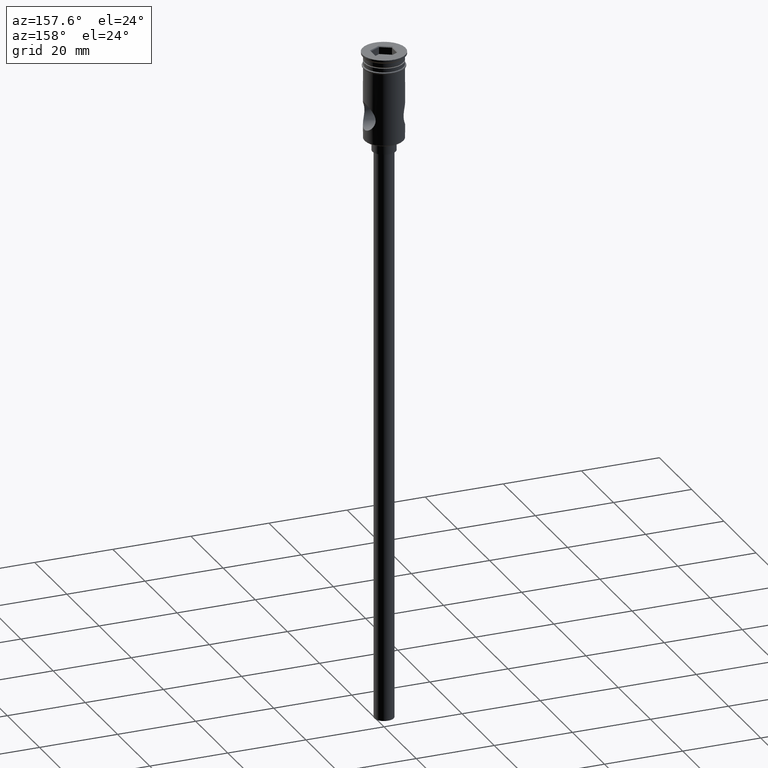
[diagram: clean part render]
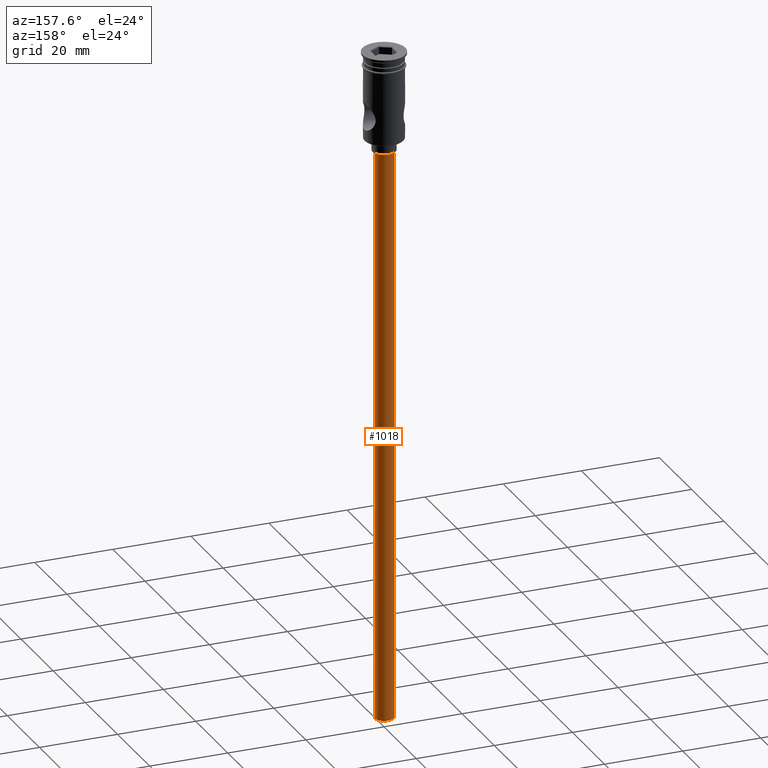
[diagram: same view with one face highlighted and labeled with its STEP entity id]
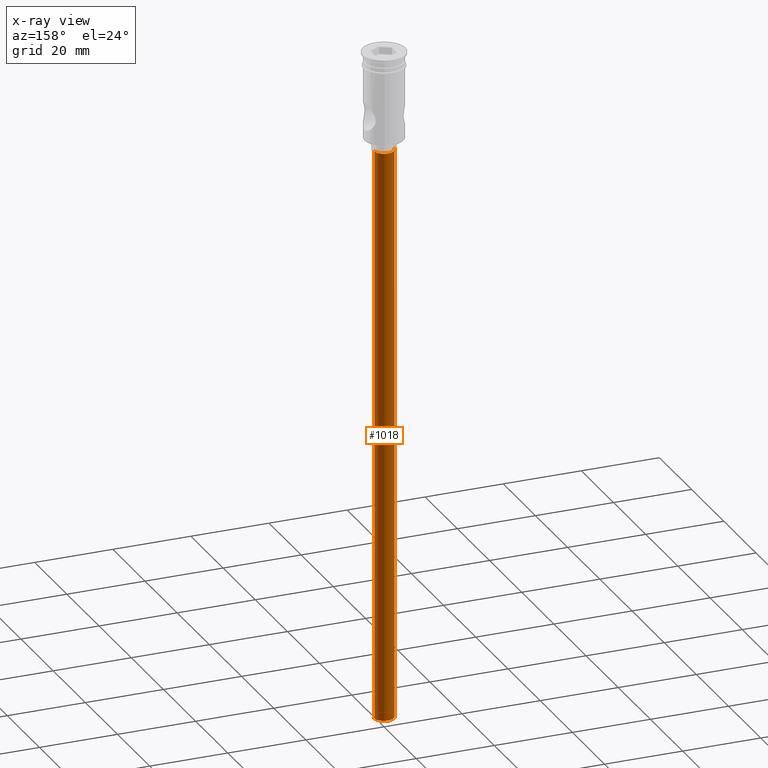
[diagram: x-ray of the same camera — body ghosted, the highlighted face saturated]
A machine part, auxiliary view. The second image highlights one B-rep face of the part: STEP entity #1018.
The next image is the same camera in x-ray: the body ghosted, the highlighted face saturated — about 0% of this face is hidden behind the body in this view.
In plain terms, the highlighted cylindrical surface (edge-blend (fillet) strip) has radius 2.5 mm, axis along (-0, -0, 1).
Its self-contained STEP definition (entity closure, byte-faithful):
#5 = ORIENTED_EDGE ( 'NONE', *, *, #1066, .T. ) ;
#10 = CARTESIAN_POINT ( 'NONE',  ( 0.000000000000000000, 0.000000000000000000, -25.50000000000000000 ) ) ;
#43 = DIRECTION ( 'NONE',  ( -0.000000000000000000, -0.000000000000000000, 1.000000000000000000 ) ) ;
#66 = CYLINDRICAL_SURFACE ( 'NONE', #178, 2.500000000000000000 ) ;
#115 = VECTOR ( 'NONE', #43, 1000.000000000000000 ) ;
#125 = EDGE_CURVE ( 'NONE', #1451, #959, #760, .T. ) ;
#147 = VERTEX_POINT ( 'NONE', #581 ) ;
#155 = CARTESIAN_POINT ( 'NONE',  ( -2.500000000000000000, 3.061616997868383141E-16, -25.50000000000000000 ) ) ;
#178 = AXIS2_PLACEMENT_3D ( 'NONE', #532, #297, #742 ) ;
#203 = LINE ( 'NONE', #648, #1180 ) ;
#225 = DIRECTION ( 'NONE',  ( -0.000000000000000000, -0.000000000000000000, 1.000000000000000000 ) ) ;
#297 = DIRECTION ( 'NONE',  ( -0.000000000000000000, -0.000000000000000000, 1.000000000000000000 ) ) ;
#349 = DIRECTION ( 'NONE',  ( -1.000000000000000000, 0.000000000000000000, 0.000000000000000000 ) ) ;
#387 = CIRCLE ( 'NONE', #957, 2.500000000000000000 ) ;
#532 = CARTESIAN_POINT ( 'NONE',  ( 0.000000000000000000, 0.000000000000000000, -172.5000000000000000 ) ) ;
#567 = ORIENTED_EDGE ( 'NONE', *, *, #907, .T. ) ;
#581 = CARTESIAN_POINT ( 'NONE',  ( 2.500000000000000000, 0.000000000000000000, -25.50000000000000000 ) ) ;
#648 = CARTESIAN_POINT ( 'NONE',  ( 2.500000000000000000, 0.000000000000000000, -172.5000000000000000 ) ) ;
#700 = EDGE_LOOP ( 'NONE', ( #949, #567, #5, #1457 ) ) ;
#712 = AXIS2_PLACEMENT_3D ( 'NONE', #1030, #1388, #349 ) ;
#742 = DIRECTION ( 'NONE',  ( 1.000000000000000000, 0.000000000000000000, 0.000000000000000000 ) ) ;
#760 = CIRCLE ( 'NONE', #712, 2.500000000000000000 ) ;
#907 = EDGE_CURVE ( 'NONE', #1451, #1269, #1192, .T. ) ;
#949 = ORIENTED_EDGE ( 'NONE', *, *, #125, .F. ) ;
#957 = AXIS2_PLACEMENT_3D ( 'NONE', #10, #1448, #1016 ) ;
#959 = VERTEX_POINT ( 'NONE', #1435 ) ;
#1016 = DIRECTION ( 'NONE',  ( -1.000000000000000000, 0.000000000000000000, 0.000000000000000000 ) ) ;
#1018 = ADVANCED_FACE ( 'NONE', ( #1109 ), #66, .T. ) ;
#1030 = CARTESIAN_POINT ( 'NONE',  ( 0.000000000000000000, 0.000000000000000000, -172.5000000000000000 ) ) ;
#1063 = CARTESIAN_POINT ( 'NONE',  ( -2.500000000000000000, 3.061616997868383141E-16, -172.5000000000000000 ) ) ;
#1066 = EDGE_CURVE ( 'NONE', #1269, #147, #387, .T. ) ;
#1109 = FACE_OUTER_BOUND ( 'NONE', #700, .T. ) ;
#1180 = VECTOR ( 'NONE', #225, 1000.000000000000000 ) ;
#1192 = LINE ( 'NONE', #1063, #115 ) ;
#1269 = VERTEX_POINT ( 'NONE', #155 ) ;
#1377 = CARTESIAN_POINT ( 'NONE',  ( -2.500000000000000000, 3.061616997868383141E-16, -172.5000000000000000 ) ) ;
#1382 = EDGE_CURVE ( 'NONE', #959, #147, #203, .T. ) ;
#1388 = DIRECTION ( 'NONE',  ( 0.000000000000000000, 0.000000000000000000, -1.000000000000000000 ) ) ;
#1435 = CARTESIAN_POINT ( 'NONE',  ( 2.500000000000000000, 0.000000000000000000, -172.5000000000000000 ) ) ;
#1448 = DIRECTION ( 'NONE',  ( 0.000000000000000000, 0.000000000000000000, -1.000000000000000000 ) ) ;
#1451 = VERTEX_POINT ( 'NONE', #1377 ) ;
#1457 = ORIENTED_EDGE ( 'NONE', *, *, #1382, .F. ) ;